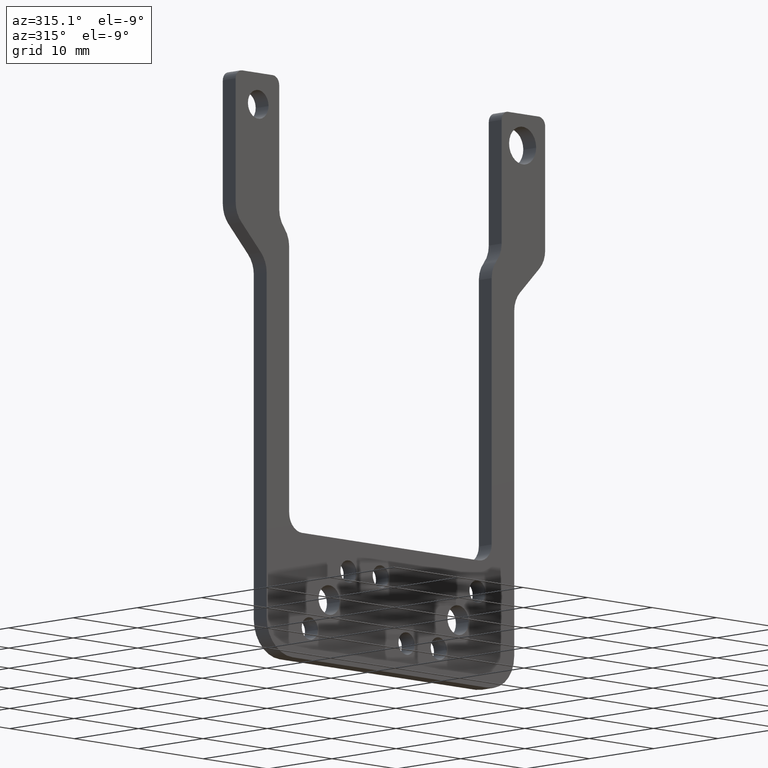
[diagram: clean part render]
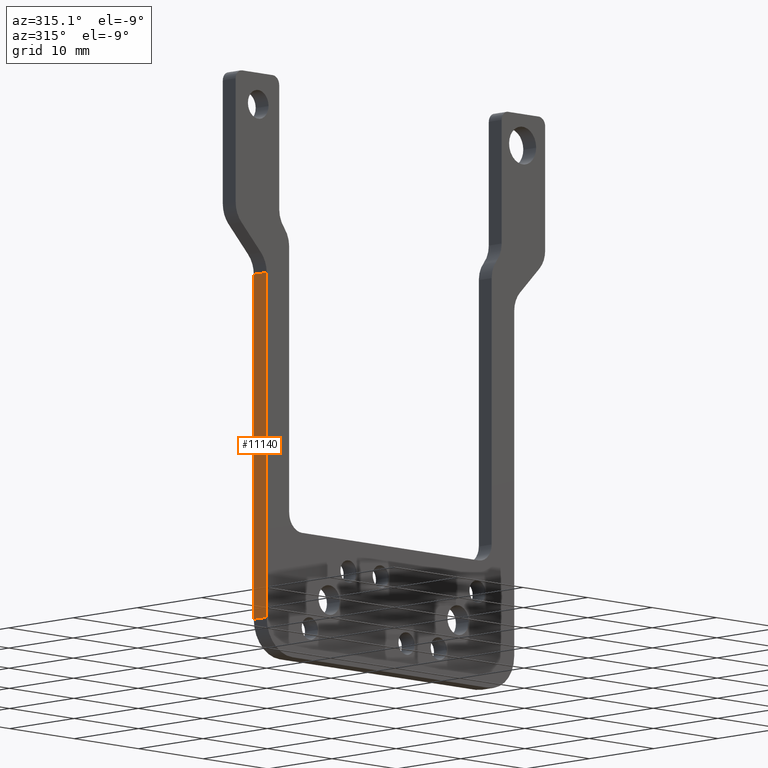
[diagram: same view with one face highlighted and labeled with its STEP entity id]
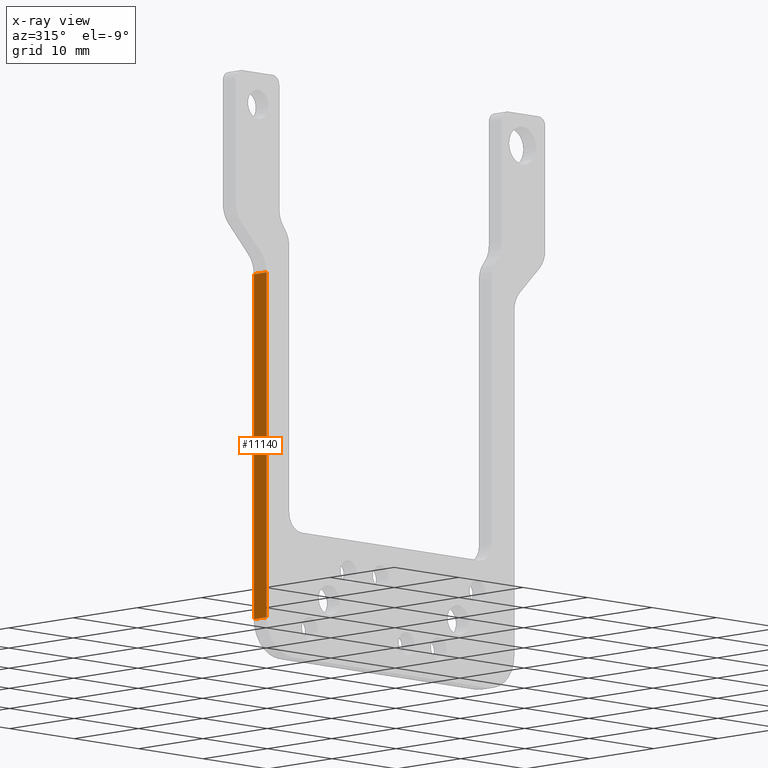
[diagram: x-ray of the same camera — body ghosted, the highlighted face saturated]
A machine part, auxiliary view. The second image highlights one B-rep face of the part: STEP entity #11140.
The next image is the same camera in x-ray: the body ghosted, the highlighted face saturated — about 0% of this face is hidden behind the body in this view.
In plain terms, the highlighted planar face has unit normal (1, 0, 0).
Its self-contained STEP definition (entity closure, byte-faithful):
#2140=CARTESIAN_POINT('',(19.2,-2.0084000271366E-13,-56.8999999999994));
#2150=VERTEX_POINT('',#2140);
#2180=CARTESIAN_POINT('',(19.2,-1.02879474695072E-13,-29.025690549749));
#2190=DIRECTION('',(0.,3.51436609374757E-15,1.));
#2200=VECTOR('',#2190,1.);
#2210=LINE('',#2180,#2200);
#2220=CARTESIAN_POINT('',(19.2,-6.60381996987813E-14,-18.5426406871193))
;
#2230=VERTEX_POINT('',#2220);
#2240=EDGE_CURVE('',#2150,#2230,#2210,.T.);
#7650=CARTESIAN_POINT('',(19.2,-2.00000000000007,-18.5426406871193));
#7660=VERTEX_POINT('',#7650);
#7690=CARTESIAN_POINT('',(19.2,-2.00000000000005,-13.));
#7700=DIRECTION('',(0.,-3.51436609374757E-15,-1.));
#7710=VECTOR('',#7700,1.);
#7720=LINE('',#7690,#7710);
#7730=CARTESIAN_POINT('',(19.2,-2.0000000000002,-56.8999999999994));
#7740=VERTEX_POINT('',#7730);
#7750=EDGE_CURVE('',#7660,#7740,#7720,.T.);
#10930=CARTESIAN_POINT('',(19.2,-9.75176395574833E-14,-27.5));
#10940=DIRECTION('',(-1.,-0.,0.));
#10950=DIRECTION('',(0.,-3.51436609374757E-15,-1.));
#10960=AXIS2_PLACEMENT_3D('',#10930,#10940,#10950);
#10970=PLANE('',#10960);
#10980=ORIENTED_EDGE('',*,*,#7750,.T.);
#10990=CARTESIAN_POINT('',(19.2,-6.60381996987813E-14,-18.5426406871193)
);
#11000=DIRECTION('',(0.,-1.,3.51436609374757E-15));
#11010=VECTOR('',#11000,1.);
#11020=LINE('',#10990,#11010);
#11030=EDGE_CURVE('',#2230,#7660,#11020,.T.);
#11040=ORIENTED_EDGE('',*,*,#11030,.T.);
#11050=ORIENTED_EDGE('',*,*,#2240,.T.);
#11060=CARTESIAN_POINT('',(19.2,-2.0084000271366E-13,-56.8999999999994))
;
#11070=DIRECTION('',(0.,1.,-3.51436609374757E-15));
#11080=VECTOR('',#11070,1.);
#11090=LINE('',#11060,#11080);
#11100=EDGE_CURVE('',#7740,#2150,#11090,.T.);
#11110=ORIENTED_EDGE('',*,*,#11100,.T.);
#11120=EDGE_LOOP('',(#11110,#11050,#11040,#10980));
#11130=FACE_OUTER_BOUND('',#11120,.T.);
#11140=ADVANCED_FACE('',(#11130),#10970,.F.);